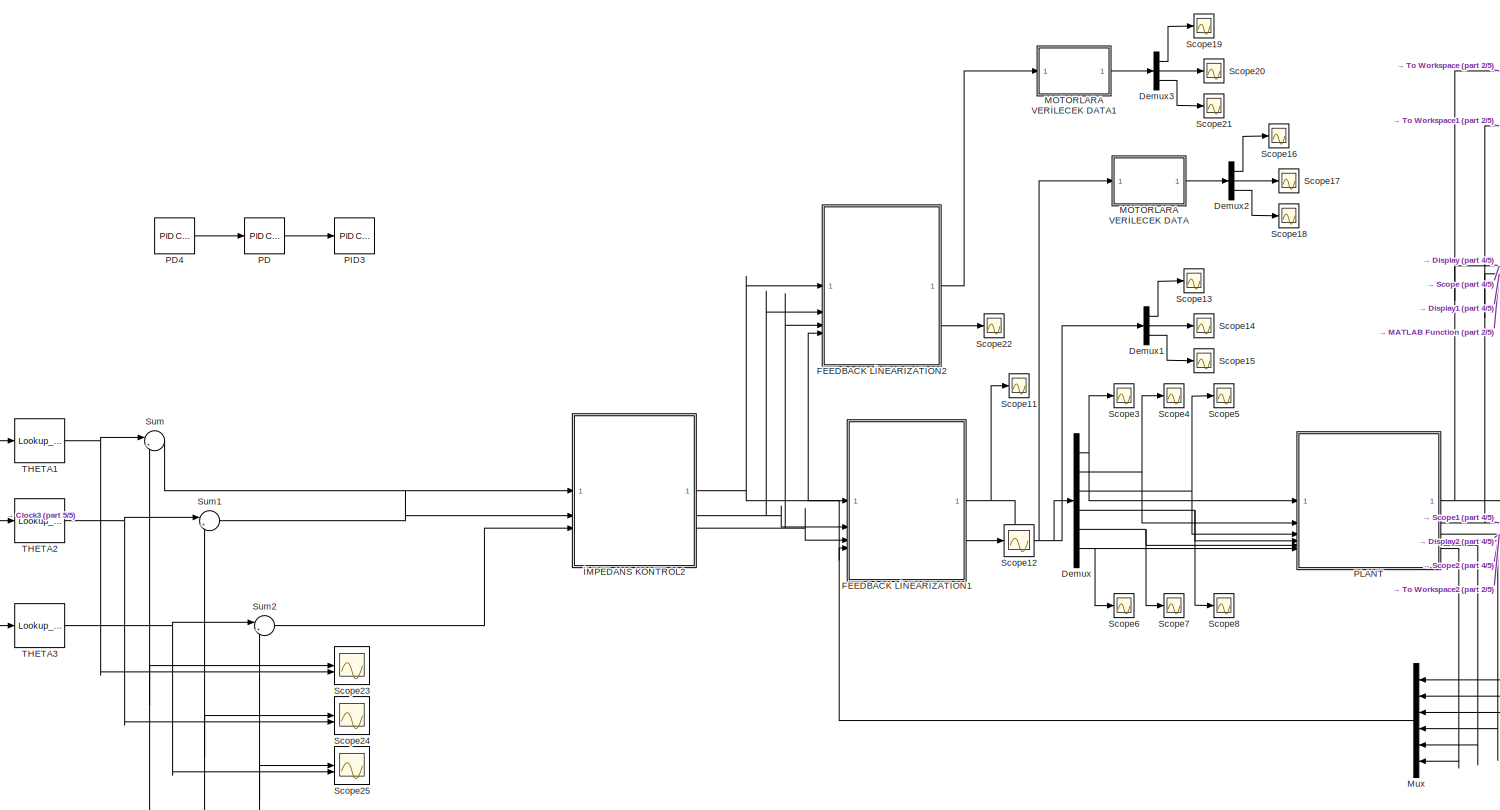
[diagram: root canvas - part 1/5, center side, full height]
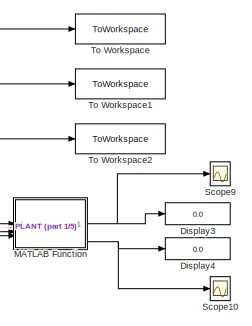
[diagram: root canvas - part 2/5, top right region]
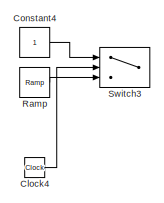
[diagram: root canvas - part 3/5, top left region]
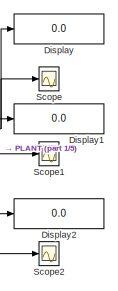
[diagram: root canvas - part 4/5, middle right region]
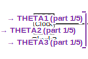
[diagram: root canvas - part 5/5, middle left region]
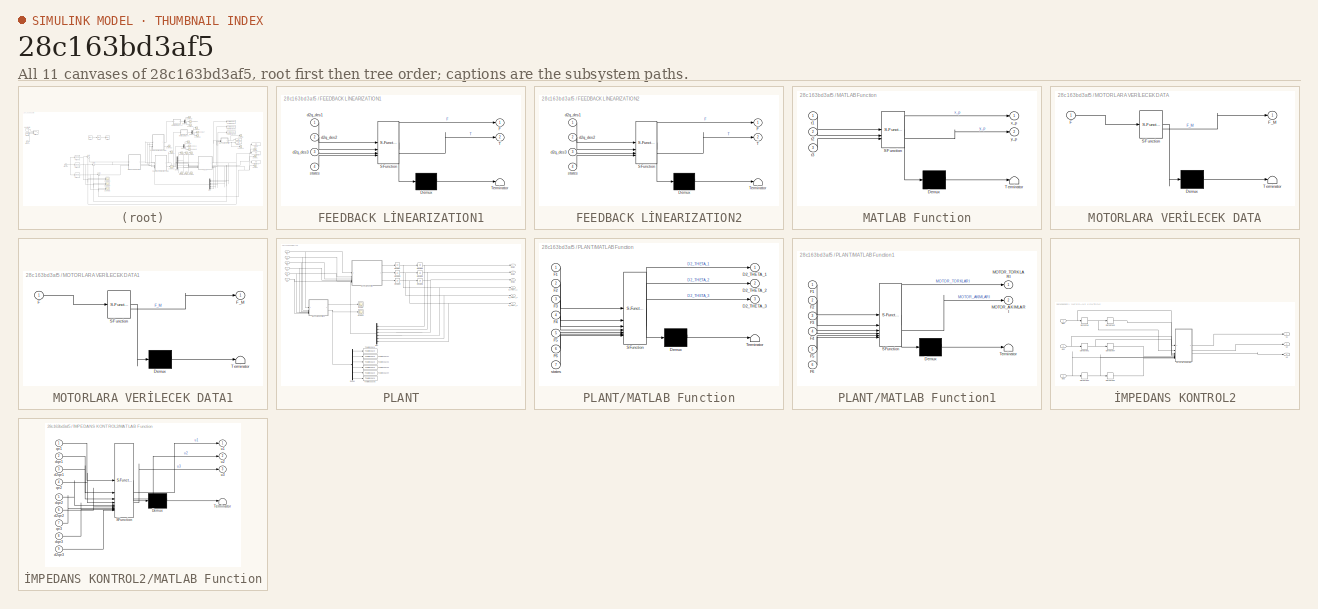
[diagram: thumbnail index - all 11 canvases of the model, root first then tree order]
MODEL slx_28c163bd3af5
KIND model
CONFIG AbsTol = auto
CONFIG EnableMultiTasking = off
CONFIG FixedStep = 0.01
CONFIG MaxStep = auto
CONFIG MinStep = auto
CONFIG RelTol = 1e-3
CONFIG SampleTimeConstraint = Unconstrained
CONFIG SolverName = FixedStepAuto
CONFIG StartTime = 0.0
CONFIG StopTime = 10
BLOCK [Clock] Clock3
BLOCK [Clock] Clock4
BLOCK [Constant] Constant4
BLOCK [Demux] Demux
  Outputs = 6
BLOCK [Demux] Demux1
  Outputs = 3
BLOCK [Demux] Demux2
  Outputs = 3
BLOCK [Demux] Demux3
  Outputs = 3
BLOCK [Display] Display
  Decimation = 1
BLOCK [Display] Display1
  Decimation = 1
BLOCK [Display] Display2
  Decimation = 1
BLOCK [Display] Display3
  Decimation = 1
BLOCK [Display] Display4
  Decimation = 1
BLOCK [SubSystem] FEEDBACK LİNEARIZATION1
  ErrorFcn = Stateflow.Translate.translate
  PermitHierarchicalResolution = ExplicitOnly
  SFBlockType = MATLAB Function
  TreatAsAtomicUnit = on
BLOCK [Demux] FEEDBACK LİNEARIZATION1/ Demux 
  Outputs = 1
BLOCK [S-Function] FEEDBACK LİNEARIZATION1/ SFunction 
  EnableBusSupport = on
  FunctionName = sf_sfun
  PortCounts = [4 3]
  SFcnIsStateOwnerBlock = off
  SFunctionDeploymentMode = off
  Tag = Stateflow S-Function 6
BLOCK [Terminator] FEEDBACK LİNEARIZATION1/ Terminator 
BLOCK [Outport] FEEDBACK LİNEARIZATION1/F
BLOCK [Outport] FEEDBACK LİNEARIZATION1/T
  Port = 2
BLOCK [Inport] FEEDBACK LİNEARIZATION1/d2q_des1
BLOCK [Inport] FEEDBACK LİNEARIZATION1/d2q_des2
  Port = 2
BLOCK [Inport] FEEDBACK LİNEARIZATION1/d2q_des3
  Port = 3
BLOCK [Inport] FEEDBACK LİNEARIZATION1/states
  Port = 4
BLOCK [SubSystem] FEEDBACK LİNEARIZATION2
  ErrorFcn = Stateflow.Translate.translate
  PermitHierarchicalResolution = ExplicitOnly
  SFBlockType = MATLAB Function
  TreatAsAtomicUnit = on
BLOCK [Demux] FEEDBACK LİNEARIZATION2/ Demux 
  Outputs = 1
BLOCK [S-Function] FEEDBACK LİNEARIZATION2/ SFunction 
  EnableBusSupport = on
  FunctionName = sf_sfun
  PortCounts = [4 3]
  SFcnIsStateOwnerBlock = off
  SFunctionDeploymentMode = off
  Tag = Stateflow S-Function 9
BLOCK [Terminator] FEEDBACK LİNEARIZATION2/ Terminator 
BLOCK [Outport] FEEDBACK LİNEARIZATION2/F
BLOCK [Outport] FEEDBACK LİNEARIZATION2/T
  Port = 2
BLOCK [Inport] FEEDBACK LİNEARIZATION2/d2q_des1
BLOCK [Inport] FEEDBACK LİNEARIZATION2/d2q_des2
  Port = 2
BLOCK [Inport] FEEDBACK LİNEARIZATION2/d2q_des3
  Port = 3
BLOCK [Inport] FEEDBACK LİNEARIZATION2/states
  Port = 4
BLOCK [SubSystem] MATLAB Function
  ErrorFcn = Stateflow.Translate.translate
  PermitHierarchicalResolution = ExplicitOnly
  SFBlockType = MATLAB Function
  TreatAsAtomicUnit = on
BLOCK [Demux] MATLAB Function/ Demux 
  Outputs = 1
BLOCK [S-Function] MATLAB Function/ SFunction 
  EnableBusSupport = on
  FunctionName = sf_sfun
  PortCounts = [3 3]
  SFcnIsStateOwnerBlock = off
  SFunctionDeploymentMode = off
  Tag = Stateflow S-Function 5
BLOCK [Terminator] MATLAB Function/ Terminator 
BLOCK [Inport] MATLAB Function/t1
BLOCK [Inport] MATLAB Function/t2
  Port = 2
BLOCK [Inport] MATLAB Function/t3
  Port = 3
BLOCK [Outport] MATLAB Function/x_p
BLOCK [Outport] MATLAB Function/y_p
  Port = 2
BLOCK [SubSystem] MOTORLARA VERİLECEK DATA
  ErrorFcn = Stateflow.Translate.translate
  PermitHierarchicalResolution = ExplicitOnly
  SFBlockType = MATLAB Function
  TreatAsAtomicUnit = on
BLOCK [Demux] MOTORLARA VERİLECEK DATA/ Demux 
  Outputs = 1
BLOCK [S-Function] MOTORLARA VERİLECEK DATA/ SFunction 
  EnableBusSupport = on
  FunctionName = sf_sfun
  PortCounts = [1 2]
  SFcnIsStateOwnerBlock = off
  SFunctionDeploymentMode = off
  Tag = Stateflow S-Function 4
BLOCK [Terminator] MOTORLARA VERİLECEK DATA/ Terminator 
BLOCK [Inport] MOTORLARA VERİLECEK DATA/F
BLOCK [Outport] MOTORLARA VERİLECEK DATA/F_M
BLOCK [SubSystem] MOTORLARA VERİLECEK DATA1
  ErrorFcn = Stateflow.Translate.translate
  PermitHierarchicalResolution = ExplicitOnly
  SFBlockType = MATLAB Function
  TreatAsAtomicUnit = on
BLOCK [Demux] MOTORLARA VERİLECEK DATA1/ Demux 
  Outputs = 1
BLOCK [S-Function] MOTORLARA VERİLECEK DATA1/ SFunction 
  EnableBusSupport = on
  FunctionName = sf_sfun
  PortCounts = [1 2]
  SFcnIsStateOwnerBlock = off
  SFunctionDeploymentMode = off
  Tag = Stateflow S-Function 3
BLOCK [Terminator] MOTORLARA VERİLECEK DATA1/ Terminator 
BLOCK [Inport] MOTORLARA VERİLECEK DATA1/F
BLOCK [Outport] MOTORLARA VERİLECEK DATA1/F_M
BLOCK [Mux] Mux
  DisplayOption = bar
  Inputs = 6
  NameLocation = top
BLOCK [Reference] PD  REF=slpidlib/PID Controller
  LibrarySourceBlock = simulink/Continuous/PID Controller
  SourceBlock = slpidlib/PID Controller
  SourceType = PID 1dof
BLOCK [Reference] PD4  REF=slpidlib/PID Controller
  LibrarySourceBlock = simulink/Continuous/PID Controller
  SourceBlock = slpidlib/PID Controller
  SourceType = PID 1dof
BLOCK [Reference] PID3  REF=slpidlib/PID Controller
  LibrarySourceBlock = simulink/Continuous/PID Controller
  SourceBlock = slpidlib/PID Controller
  SourceType = PID 1dof
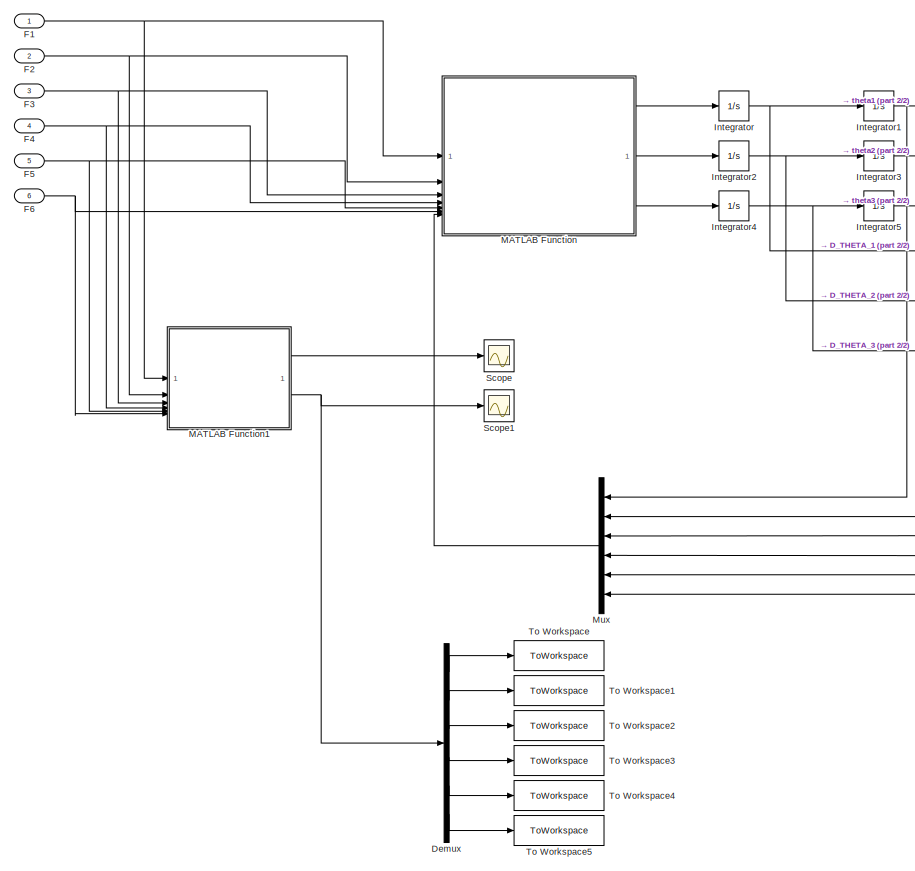
[diagram: PLANT - part 1/2, left side, full height]
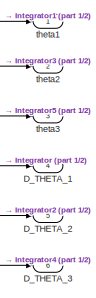
[diagram: PLANT - part 2/2, top right region]
BLOCK [SubSystem] PLANT
BLOCK [Outport] PLANT/D_THETA_1
  Port = 4
BLOCK [Outport] PLANT/D_THETA_2
  Port = 5
BLOCK [Outport] PLANT/D_THETA_3
  Port = 6
BLOCK [Demux] PLANT/Demux
  Outputs = 6
BLOCK [Inport] PLANT/F1
BLOCK [Inport] PLANT/F2
  Port = 2
BLOCK [Inport] PLANT/F3
  Port = 3
BLOCK [Inport] PLANT/F4
  Port = 4
BLOCK [Inport] PLANT/F5
  Port = 5
BLOCK [Inport] PLANT/F6
  Port = 6
BLOCK [Integrator] PLANT/Integrator
BLOCK [Integrator] PLANT/Integrator1
BLOCK [Integrator] PLANT/Integrator2
BLOCK [Integrator] PLANT/Integrator3
BLOCK [Integrator] PLANT/Integrator4
BLOCK [Integrator] PLANT/Integrator5
BLOCK [SubSystem] PLANT/MATLAB Function
  ErrorFcn = Stateflow.Translate.translate
  PermitHierarchicalResolution = ExplicitOnly
  SFBlockType = MATLAB Function
  TreatAsAtomicUnit = on
BLOCK [Demux] PLANT/MATLAB Function/ Demux 
  Outputs = 1
BLOCK [S-Function] PLANT/MATLAB Function/ SFunction 
  EnableBusSupport = on
  FunctionName = sf_sfun
  PortCounts = [7 4]
  SFcnIsStateOwnerBlock = off
  SFunctionDeploymentMode = off
  Tag = Stateflow S-Function 2
BLOCK [Terminator] PLANT/MATLAB Function/ Terminator 
BLOCK [Outport] PLANT/MATLAB Function/D2_THETA_1
BLOCK [Outport] PLANT/MATLAB Function/D2_THETA_2
  Port = 2
BLOCK [Outport] PLANT/MATLAB Function/D2_THETA_3
  Port = 3
BLOCK [Inport] PLANT/MATLAB Function/F1
BLOCK [Inport] PLANT/MATLAB Function/F2
  Port = 2
BLOCK [Inport] PLANT/MATLAB Function/F3
  Port = 3
BLOCK [Inport] PLANT/MATLAB Function/F4
  Port = 4
BLOCK [Inport] PLANT/MATLAB Function/F5
  Port = 5
BLOCK [Inport] PLANT/MATLAB Function/F6
  Port = 6
BLOCK [Inport] PLANT/MATLAB Function/states
  Port = 7
BLOCK [SubSystem] PLANT/MATLAB Function1
  ErrorFcn = Stateflow.Translate.translate
  PermitHierarchicalResolution = ExplicitOnly
  SFBlockType = MATLAB Function
  TreatAsAtomicUnit = on
BLOCK [Demux] PLANT/MATLAB Function1/ Demux 
  Outputs = 1
BLOCK [S-Function] PLANT/MATLAB Function1/ SFunction 
  EnableBusSupport = on
  FunctionName = sf_sfun
  PortCounts = [6 3]
  SFcnIsStateOwnerBlock = off
  SFunctionDeploymentMode = off
  Tag = Stateflow S-Function 1
BLOCK [Terminator] PLANT/MATLAB Function1/ Terminator 
BLOCK [Inport] PLANT/MATLAB Function1/F1
BLOCK [Inport] PLANT/MATLAB Function1/F2
  Port = 2
BLOCK [Inport] PLANT/MATLAB Function1/F3
  Port = 3
BLOCK [Inport] PLANT/MATLAB Function1/F4
  Port = 4
BLOCK [Inport] PLANT/MATLAB Function1/F5
  Port = 5
BLOCK [Inport] PLANT/MATLAB Function1/F6
  Port = 6
BLOCK [Outport] PLANT/MATLAB Function1/MOTOR_AKIMLARI
  Port = 2
BLOCK [Outport] PLANT/MATLAB Function1/MOTOR_TORKLARI
BLOCK [Mux] PLANT/Mux
  DisplayOption = bar
  Inputs = 6
  NameLocation = top
BLOCK [Scope] PLANT/Scope
  Floating = off
  NumInputPorts = 1
  ScopeSpecificationString = Simulink.scopes.TimeScopeBlockCfg('CurrentConfiguration', extmgr.ConfigurationSet(extmgr.Configuration('Core','General UI',true),extmgr.Configuration('Core','Source UI',true),extmgr.Configuration('Sources','WiredSimulink',true,'DataLoggingVariableName','ScopeData1'),extmgr.Configuration('Visuals','Time Domain',true,'SerializedDisplays',{struct('MinYLimReal','-0.0105','MaxYLimReal','0.09573','YLabe...<+1686ch>
BLOCK [Scope] PLANT/Scope1
  Floating = off
  NumInputPorts = 1
  ScopeSpecificationString = Simulink.scopes.TimeScopeBlockCfg('CurrentConfiguration', extmgr.ConfigurationSet(extmgr.Configuration('Core','General UI',true),extmgr.Configuration('Core','Source UI',true),extmgr.Configuration('Sources','WiredSimulink',true,'DataLoggingVariableName','ScopeData2'),extmgr.Configuration('Visuals','Time Domain',true,'SerializedDisplays',{struct('MinYLimReal','-0.01207','MaxYLimReal','0.11003','YLab...<+1732ch>
BLOCK [ToWorkspace] PLANT/To Workspace
  FixptAsFi = on
  MaxDataPoints = inf
  SampleTime = -1
  SaveFormat = Timeseries
  VariableName = m1
BLOCK [ToWorkspace] PLANT/To Workspace1
  FixptAsFi = on
  MaxDataPoints = inf
  SampleTime = -1
  SaveFormat = Timeseries
  VariableName = m2
BLOCK [ToWorkspace] PLANT/To Workspace2
  FixptAsFi = on
  MaxDataPoints = inf
  SampleTime = -1
  SaveFormat = Timeseries
  VariableName = m3
BLOCK [ToWorkspace] PLANT/To Workspace3
  FixptAsFi = on
  MaxDataPoints = inf
  SampleTime = -1
  SaveFormat = Timeseries
  VariableName = m4
BLOCK [ToWorkspace] PLANT/To Workspace4
  FixptAsFi = on
  MaxDataPoints = inf
  SampleTime = -1
  SaveFormat = Timeseries
  VariableName = m5
BLOCK [ToWorkspace] PLANT/To Workspace5
  FixptAsFi = on
  MaxDataPoints = inf
  SampleTime = -1
  SaveFormat = Timeseries
  VariableName = m6
BLOCK [Outport] PLANT/theta1
BLOCK [Outport] PLANT/theta2
  Port = 2
BLOCK [Outport] PLANT/theta3
  Port = 3
BLOCK [Reference] Ramp  REF=simulink/Sources/Ramp
  SourceBlock = simulink/Sources/Ramp
  SourceType = Ramp
BLOCK [Scope] Scope
  Floating = off
  NumInputPorts = 1
  ScopeSpecificationString = Simulink.scopes.TimeScopeBlockCfg('CurrentConfiguration', extmgr.ConfigurationSet(extmgr.Configuration('Core','General UI',true),extmgr.Configuration('Core','Source UI',true),extmgr.Configuration('Sources','WiredSimulink',true,'DataLoggingVariableName','ScopeData1'),extmgr.Configuration('Visuals','Time Domain',true,'SerializedDisplays',{struct('MinYLimReal','-0.18281','MaxYLimReal','1.64529','YLab...<+1507ch>
BLOCK [Scope] Scope1
  Floating = off
  NumInputPorts = 1
  ScopeSpecificationString = Simulink.scopes.TimeScopeBlockCfg('CurrentConfiguration', extmgr.ConfigurationSet(extmgr.Configuration('Core','General UI',true),extmgr.Configuration('Core','Source UI',true),extmgr.Configuration('Sources','WiredSimulink',true,'DataLoggingVariableName','ScopeData2'),extmgr.Configuration('Visuals','Time Domain',true,'SerializedDisplays',{struct('MinYLimReal','-0.41772','MaxYLimReal','0.37044','YLab...<+1482ch>
BLOCK [Scope] Scope10
  Floating = off
  NumInputPorts = 1
  ScopeSpecificationString = Simulink.scopes.TimeScopeBlockCfg('CurrentConfiguration', extmgr.ConfigurationSet(extmgr.Configuration('Core','General UI',true),extmgr.Configuration('Core','Source UI',true),extmgr.Configuration('Sources','WiredSimulink',true,'DataLoggingVariableName','ScopeData1'),extmgr.Configuration('Visuals','Time Domain',true,'SerializedDisplays',{struct('MinYLimReal','-1.92457','MaxYLimReal','17.32114','YLa...<+1523ch>
BLOCK [Scope] Scope11
  Floating = off
  NumInputPorts = 1
  ScopeSpecificationString = Simulink.scopes.TimeScopeBlockCfg('CurrentConfiguration', extmgr.ConfigurationSet(extmgr.Configuration('Core','General UI',true),extmgr.Configuration('Core','Source UI',true),extmgr.Configuration('Sources','WiredSimulink',true,'DataLoggingVariableName','ScopeData1'),extmgr.Configuration('Visuals','Time Domain',true,'SerializedDisplays',{struct('MinYLimReal','-1.33044','MaxYLimReal','11.97396','YLa...<+1681ch>
BLOCK [Scope] Scope12
  Floating = off
  NumInputPorts = 1
  ScopeSpecificationString = Simulink.scopes.TimeScopeBlockCfg('CurrentConfiguration', extmgr.ConfigurationSet(extmgr.Configuration('Core','General UI',true),extmgr.Configuration('Core','Source UI',true),extmgr.Configuration('Sources','WiredSimulink',true,'DataLoggingVariableName','ScopeData1'),extmgr.Configuration('Visuals','Time Domain',true,'SerializedDisplays',{struct('MinYLimReal','-0.00251','MaxYLimReal','0.03432','YLab...<+1638ch>
BLOCK [Scope] Scope13
  Floating = off
  NumInputPorts = 1
  ScopeSpecificationString = Simulink.scopes.TimeScopeBlockCfg('CurrentConfiguration', extmgr.ConfigurationSet(extmgr.Configuration('Core','General UI',true),extmgr.Configuration('Core','Source UI',true),extmgr.Configuration('Sources','WiredSimulink',true,'DataLoggingVariableName','ScopeData1'),extmgr.Configuration('Visuals','Time Domain',true,'SerializedDisplays',{struct('MinYLimReal','-0.92318','MaxYLimReal','8.30863','YLab...<+1542ch>
BLOCK [Scope] Scope14
  Floating = off
  NumInputPorts = 1
  ScopeSpecificationString = Simulink.scopes.TimeScopeBlockCfg('CurrentConfiguration', extmgr.ConfigurationSet(extmgr.Configuration('Core','General UI',true),extmgr.Configuration('Core','Source UI',true),extmgr.Configuration('Sources','WiredSimulink',true,'DataLoggingVariableName','ScopeData2'),extmgr.Configuration('Visuals','Time Domain',true,'SerializedDisplays',{struct('MinYLimReal','-0.35431','MaxYLimReal','3.18882','YLab...<+1498ch>
BLOCK [Scope] Scope15
  Floating = off
  NumInputPorts = 1
  ScopeSpecificationString = Simulink.scopes.TimeScopeBlockCfg('CurrentConfiguration', extmgr.ConfigurationSet(extmgr.Configuration('Core','General UI',true),extmgr.Configuration('Core','Source UI',true),extmgr.Configuration('Sources','WiredSimulink',true,'DataLoggingVariableName','ScopeData3'),extmgr.Configuration('Visuals','Time Domain',true,'SerializedDisplays',{struct('MinYLimReal','-0.06054','MaxYLimReal','0.5449','YLabe...<+1494ch>
BLOCK [Scope] Scope16
  Floating = off
  NumInputPorts = 1
  ScopeSpecificationString = Simulink.scopes.TimeScopeBlockCfg('CurrentConfiguration', extmgr.ConfigurationSet(extmgr.Configuration('Core','General UI',true),extmgr.Configuration('Core','Source UI',true),extmgr.Configuration('Sources','WiredSimulink',true,'DataLoggingVariableName','ScopeData4'),extmgr.Configuration('Visuals','Time Domain',true,'SerializedDisplays',{struct('MinYLimReal','-8.498','MaxYLimReal','8.498','YLabelRe...<+1531ch>
BLOCK [Scope] Scope17
  Floating = off
  NumInputPorts = 1
  ScopeSpecificationString = Simulink.scopes.TimeScopeBlockCfg('CurrentConfiguration', extmgr.ConfigurationSet(extmgr.Configuration('Core','General UI',true),extmgr.Configuration('Core','Source UI',true),extmgr.Configuration('Sources','WiredSimulink',true,'DataLoggingVariableName','ScopeData5'),extmgr.Configuration('Visuals','Time Domain',true,'SerializedDisplays',{struct('MinYLimReal','-0.31485','MaxYLimReal','2.83361','YLab...<+1498ch>
BLOCK [Scope] Scope18
  Floating = off
  NumInputPorts = 1
  ScopeSpecificationString = Simulink.scopes.TimeScopeBlockCfg('CurrentConfiguration', extmgr.ConfigurationSet(extmgr.Configuration('Core','General UI',true),extmgr.Configuration('Core','Source UI',true),extmgr.Configuration('Sources','WiredSimulink',true,'DataLoggingVariableName','ScopeData6'),extmgr.Configuration('Visuals','Time Domain',true,'SerializedDisplays',{struct('MinYLimReal','-0.05099','MaxYLimReal','0.45891','YLab...<+1498ch>
BLOCK [Scope] Scope19
  Floating = off
  NumInputPorts = 1
  ScopeSpecificationString = Simulink.scopes.TimeScopeBlockCfg('CurrentConfiguration', extmgr.ConfigurationSet(extmgr.Configuration('Core','General UI',true),extmgr.Configuration('Core','Source UI',true),extmgr.Configuration('Sources','WiredSimulink',true,'DataLoggingVariableName','ScopeData7'),extmgr.Configuration('Visuals','Time Domain',true,'SerializedDisplays',{struct('MinYLimReal','-8.498','MaxYLimReal','8.498','YLabelRe...<+1529ch>
BLOCK [Scope] Scope2
  Floating = off
  NumInputPorts = 1
  ScopeSpecificationString = Simulink.scopes.TimeScopeBlockCfg('CurrentConfiguration', extmgr.ConfigurationSet(extmgr.Configuration('Core','General UI',true),extmgr.Configuration('Core','Source UI',true),extmgr.Configuration('Sources','WiredSimulink',true,'DataLoggingVariableName','ScopeData3'),extmgr.Configuration('Visuals','Time Domain',true,'SerializedDisplays',{struct('MinYLimReal','-3.27561','MaxYLimReal','0.36396','YLab...<+1455ch>
BLOCK [Scope] Scope20
  Floating = off
  NumInputPorts = 1
  ScopeSpecificationString = Simulink.scopes.TimeScopeBlockCfg('CurrentConfiguration', extmgr.ConfigurationSet(extmgr.Configuration('Core','General UI',true),extmgr.Configuration('Core','Source UI',true),extmgr.Configuration('Sources','WiredSimulink',true,'DataLoggingVariableName','ScopeData8'),extmgr.Configuration('Visuals','Time Domain',true,'SerializedDisplays',{struct('MinYLimReal','-0.31485','MaxYLimReal','2.83361','YLab...<+1498ch>
BLOCK [Scope] Scope21
  Floating = off
  NumInputPorts = 1
  ScopeSpecificationString = Simulink.scopes.TimeScopeBlockCfg('CurrentConfiguration', extmgr.ConfigurationSet(extmgr.Configuration('Core','General UI',true),extmgr.Configuration('Core','Source UI',true),extmgr.Configuration('Sources','WiredSimulink',true,'DataLoggingVariableName','ScopeData9'),extmgr.Configuration('Visuals','Time Domain',true,'SerializedDisplays',{struct('MinYLimReal','-0.05099','MaxYLimReal','0.45891','YLab...<+1498ch>
BLOCK [Scope] Scope22
  Floating = off
  NumInputPorts = 1
  ScopeSpecificationString = Simulink.scopes.TimeScopeBlockCfg('CurrentConfiguration', extmgr.ConfigurationSet(extmgr.Configuration('Core','General UI',true),extmgr.Configuration('Core','Source UI',true),extmgr.Configuration('Sources','WiredSimulink',true,'DataLoggingVariableName','ScopeData10'),extmgr.Configuration('Visuals','Time Domain',true,'SerializedDisplays',{struct('MinYLimReal','-0.8498','MaxYLimReal','7.6482','YLabe...<+1537ch>
BLOCK [Scope] Scope23
  Floating = off
  NumInputPorts = 2
  ScopeSpecificationString = Simulink.scopes.TimeScopeBlockCfg('CurrentConfiguration', extmgr.ConfigurationSet(extmgr.Configuration('Core','General UI',true,'FigureColor',[0.831372549019608 0.815686274509804 0.784313725490196]),extmgr.Configuration('Core','Source UI',true),extmgr.Configuration('Sources','WiredSimulink',true,'DataLoggingVariableName','ScopeData1'),extmgr.Configuration('Visuals','Time Domain',true,'SerializedDi...<+1840ch>
BLOCK [Scope] Scope24
  Floating = off
  NumInputPorts = 2
  ScopeSpecificationString = Simulink.scopes.TimeScopeBlockCfg('CurrentConfiguration', extmgr.ConfigurationSet(extmgr.Configuration('Core','General UI',true,'FigureColor',[0.831372549019608 0.815686274509804 0.784313725490196]),extmgr.Configuration('Core','Source UI',true),extmgr.Configuration('Sources','WiredSimulink',true,'DataLoggingVariableName','ScopeData2'),extmgr.Configuration('Visuals','Time Domain',true,'SerializedDi...<+1840ch>
BLOCK [Scope] Scope25
  Floating = off
  NumInputPorts = 2
  ScopeSpecificationString = Simulink.scopes.TimeScopeBlockCfg('CurrentConfiguration', extmgr.ConfigurationSet(extmgr.Configuration('Core','General UI',true,'FigureColor',[0.831372549019608 0.815686274509804 0.784313725490196]),extmgr.Configuration('Core','Source UI',true),extmgr.Configuration('Sources','WiredSimulink',true,'DataLoggingVariableName','ScopeData3'),extmgr.Configuration('Visuals','Time Domain',true,'SerializedDi...<+1842ch>
BLOCK [Scope] Scope3
  Floating = off
  NumInputPorts = 1
  ScopeSpecificationString = Simulink.scopes.TimeScopeBlockCfg('CurrentConfiguration', extmgr.ConfigurationSet(extmgr.Configuration('Core','General UI',true),extmgr.Configuration('Core','Source UI',true),extmgr.Configuration('Sources','WiredSimulink',true,'DataLoggingVariableName','ScopeData4'),extmgr.Configuration('Visuals','Time Domain',true,'SerializedDisplays',{struct('MinYLimReal','-0.13229','MaxYLimReal','1.29065','YLab...<+1525ch>
BLOCK [Scope] Scope4
  Floating = off
  NumInputPorts = 1
  ScopeSpecificationString = Simulink.scopes.TimeScopeBlockCfg('CurrentConfiguration', extmgr.ConfigurationSet(extmgr.Configuration('Core','General UI',true),extmgr.Configuration('Core','Source UI',true),extmgr.Configuration('Sources','WiredSimulink',true,'DataLoggingVariableName','ScopeData5'),extmgr.Configuration('Visuals','Time Domain',true,'SerializedDisplays',{struct('MinYLimReal','-0.8498','MaxYLimReal','7.6482','YLabel...<+1477ch>
BLOCK [Scope] Scope5
  Floating = off
  NumInputPorts = 1
  ScopeSpecificationString = Simulink.scopes.TimeScopeBlockCfg('CurrentConfiguration', extmgr.ConfigurationSet(extmgr.Configuration('Core','General UI',true),extmgr.Configuration('Core','Source UI',true),extmgr.Configuration('Sources','WiredSimulink',true,'DataLoggingVariableName','ScopeData6'),extmgr.Configuration('Visuals','Time Domain',true,'SerializedDisplays',{struct('MinYLimReal','-0.02709','MaxYLimReal','0.34377','YLab...<+1482ch>
BLOCK [Scope] Scope6
  Floating = off
  NumInputPorts = 1
  ScopeSpecificationString = Simulink.scopes.TimeScopeBlockCfg('CurrentConfiguration', extmgr.ConfigurationSet(extmgr.Configuration('Core','General UI',true),extmgr.Configuration('Core','Source UI',true),extmgr.Configuration('Sources','WiredSimulink',true,'DataLoggingVariableName','ScopeData7'),extmgr.Configuration('Visuals','Time Domain',true,'SerializedDisplays',{struct('MinYLimReal','-0.04099','MaxYLimReal','0.46891','YLab...<+1482ch>
BLOCK [Scope] Scope7
  Floating = off
  NumInputPorts = 1
  ScopeSpecificationString = Simulink.scopes.TimeScopeBlockCfg('CurrentConfiguration', extmgr.ConfigurationSet(extmgr.Configuration('Core','General UI',true),extmgr.Configuration('Core','Source UI',true),extmgr.Configuration('Sources','WiredSimulink',true,'DataLoggingVariableName','ScopeData8'),extmgr.Configuration('Visuals','Time Domain',true,'SerializedDisplays',{struct('MinYLimReal','-0.01772','MaxYLimReal','0.25952','YLab...<+1482ch>
BLOCK [Scope] Scope8
  Floating = off
  NumInputPorts = 1
  ScopeSpecificationString = Simulink.scopes.TimeScopeBlockCfg('CurrentConfiguration', extmgr.ConfigurationSet(extmgr.Configuration('Core','General UI',true),extmgr.Configuration('Core','Source UI',true),extmgr.Configuration('Sources','WiredSimulink',true,'DataLoggingVariableName','ScopeData9'),extmgr.Configuration('Visuals','Time Domain',true,'SerializedDisplays',{struct('MinYLimReal','-0.30485','MaxYLimReal','2.84361','YLab...<+1482ch>
BLOCK [Scope] Scope9
  Floating = off
  NumInputPorts = 1
  ScopeSpecificationString = Simulink.scopes.TimeScopeBlockCfg('CurrentConfiguration', extmgr.ConfigurationSet(extmgr.Configuration('Core','General UI',true),extmgr.Configuration('Core','Source UI',true),extmgr.Configuration('Sources','WiredSimulink',true,'DataLoggingVariableName','ScopeData2'),extmgr.Configuration('Visuals','Time Domain',true,'SerializedDisplays',{struct('MinYLimReal','8.01617','MaxYLimReal','26.55376','YLab...<+1521ch>
BLOCK [Sum] Sum
  Inputs = |+-
BLOCK [Sum] Sum1
  Inputs = |+-
BLOCK [Sum] Sum2
  Inputs = |+-
BLOCK [Switch] Switch3
  Criteria = u2 > Threshold
  InputSameDT = off
  SaturateOnIntegerOverflow = off
  Threshold = 2
BLOCK [Lookup_n-D] THETA1
  BreakpointsForDimension1 = [0:0.01209:10]
  InputPortMap = u0
  InternalRulePriority = Speed
  NumberOfTableDimensions = 1
  RndMeth = Simplest
  Table = [3.6739403974420595e-17  0.0018373747386941153  0.031104117726482236  0.018742775985835458  0.03582520263747096  0.04592374641467687  0.052359865334245005  0.024058789434421298  0.0371846744639253  0.03766299609142134  0.04053395039223553  0.05419725229851646  0.03858245137367349  0.06940555854089034  0.07349874804657569  0.06036247150750728  0.05603574389361684  0.060203800337469145  0.0574270776...<+16163ch>
BLOCK [Lookup_n-D] THETA2
  BreakpointsForDimension1 = [0:0.01209:10]
  InputPortMap = u0
  InternalRulePriority = Speed
  NumberOfTableDimensions = 1
  RndMeth = Simplest
  Table = [0.0  0.03490658503988885  -0.033284041948025575  0.024108973093034097  0.017453292519947913  0.010897133595376871  2.580956827951785e-08  0.05801510497744568  0.04868897935829344  0.05235987755982642  0.060690073963622776  0.03490658503990476  0.06981317007977231  0.024238413989330437  0.014730566219418576  0.05579073535311509  0.06981317007977231  0.06823361310456687  0.08130478950558964  0.0281...<+17431ch>
BLOCK [Lookup_n-D] THETA3
  BreakpointsForDimension1 = [0:0.01209:10]
  InputPortMap = u0
  InternalRulePriority = Speed
  NumberOfTableDimensions = 1
  RndMeth = Simplest
  Table = [1.4901161157108252e-08  -0.08910383733841787  -0.0327266608183487  -0.12139156541861737  -0.17545154279702416  -0.19644722016959976  -0.19198623130335932  -0.21297358831144533  -0.2429532865017081  -0.2471025063307386  -0.27575694955529145  -0.2636367625378544  -0.282928546652879  -0.29435683650957045  -0.2802155319853704  -0.32559271709994325  -0.3352884242127084  -0.34660356994132824  -0.365624...<+16824ch>
BLOCK [ToWorkspace] To Workspace
  FixptAsFi = on
  MaxDataPoints = inf
  SampleTime = -1
  SaveFormat = Timeseries
  VariableName = theta1
BLOCK [ToWorkspace] To Workspace1
  FixptAsFi = on
  MaxDataPoints = inf
  SampleTime = -1
  SaveFormat = Timeseries
  VariableName = theta2
BLOCK [ToWorkspace] To Workspace2
  FixptAsFi = on
  MaxDataPoints = inf
  SampleTime = -1
  SaveFormat = Timeseries
  VariableName = theta3
BLOCK [SubSystem] İMPEDANS KONTROL2
BLOCK [Derivative] İMPEDANS KONTROL2/Derivative
BLOCK [Derivative] İMPEDANS KONTROL2/Derivative1
BLOCK [Derivative] İMPEDANS KONTROL2/Derivative2
BLOCK [Derivative] İMPEDANS KONTROL2/Derivative3
BLOCK [Derivative] İMPEDANS KONTROL2/Derivative4
BLOCK [Derivative] İMPEDANS KONTROL2/Derivative5
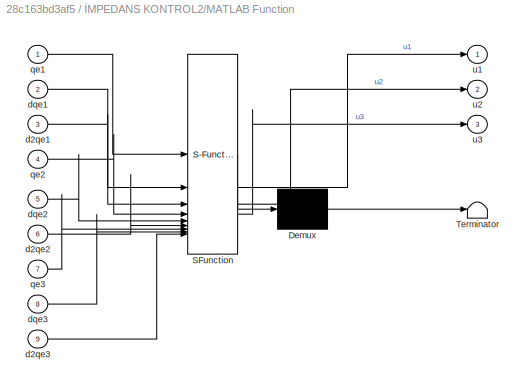
BLOCK [SubSystem] İMPEDANS KONTROL2/MATLAB Function
  ErrorFcn = Stateflow.Translate.translate
  PermitHierarchicalResolution = ExplicitOnly
  SFBlockType = MATLAB Function
  TreatAsAtomicUnit = on
BLOCK [Demux] İMPEDANS KONTROL2/MATLAB Function/ Demux 
  Outputs = 1
BLOCK [S-Function] İMPEDANS KONTROL2/MATLAB Function/ SFunction 
  EnableBusSupport = on
  FunctionName = sf_sfun
  PortCounts = [9 4]
  SFcnIsStateOwnerBlock = off
  SFunctionDeploymentMode = off
  Tag = Stateflow S-Function 10
BLOCK [Terminator] İMPEDANS KONTROL2/MATLAB Function/ Terminator 
BLOCK [Inport] İMPEDANS KONTROL2/MATLAB Function/d2qe1
  Port = 3
BLOCK [Inport] İMPEDANS KONTROL2/MATLAB Function/d2qe2
  Port = 6
BLOCK [Inport] İMPEDANS KONTROL2/MATLAB Function/d2qe3
  Port = 9
BLOCK [Inport] İMPEDANS KONTROL2/MATLAB Function/dqe1
  Port = 2
BLOCK [Inport] İMPEDANS KONTROL2/MATLAB Function/dqe2
  Port = 5
BLOCK [Inport] İMPEDANS KONTROL2/MATLAB Function/dqe3
  Port = 8
BLOCK [Inport] İMPEDANS KONTROL2/MATLAB Function/qe1
BLOCK [Inport] İMPEDANS KONTROL2/MATLAB Function/qe2
  Port = 4
BLOCK [Inport] İMPEDANS KONTROL2/MATLAB Function/qe3
  Port = 7
BLOCK [Outport] İMPEDANS KONTROL2/MATLAB Function/u1
BLOCK [Outport] İMPEDANS KONTROL2/MATLAB Function/u2
  Port = 2
BLOCK [Outport] İMPEDANS KONTROL2/MATLAB Function/u3
  Port = 3
BLOCK [Inport] İMPEDANS KONTROL2/qe1
BLOCK [Inport] İMPEDANS KONTROL2/qe2
  Port = 2
BLOCK [Inport] İMPEDANS KONTROL2/qe3
  Port = 3
BLOCK [Outport] İMPEDANS KONTROL2/u1
BLOCK [Outport] İMPEDANS KONTROL2/u2
  Port = 2
BLOCK [Outport] İMPEDANS KONTROL2/u3
  Port = 3
NET Clock3:1 -> THETA1:1, THETA2:1, THETA3:1
LINE Clock4:1 -> Switch3:2
LINE Constant4:1 -> Switch3:1
LINE Demux1:1 -> Scope13:1
LINE Demux1:2 -> Scope14:1
LINE Demux1:3 -> Scope15:1
LINE Demux2:1 -> Scope16:1
LINE Demux2:2 -> Scope17:1
LINE Demux2:3 -> Scope18:1
LINE Demux3:1 -> Scope19:1
LINE Demux3:2 -> Scope20:1
LINE Demux3:3 -> Scope21:1
NET Demux:1 -> PLANT:1, Scope3:1
NET Demux:2 -> PLANT:2, Scope4:1
NET Demux:3 -> PLANT:3, Scope5:1
NET Demux:4 -> PLANT:4, Scope8:1
NET Demux:5 -> PLANT:5, Scope7:1
NET Demux:6 -> PLANT:6, Scope6:1
NET FEEDBACK LİNEARIZATION1:1 -> Demux1:1, Demux:1, MOTORLARA VERİLECEK DATA:1, Scope11:1
LINE FEEDBACK LİNEARIZATION1:2 -> Scope12:1
LINE FEEDBACK LİNEARIZATION2:1 -> MOTORLARA VERİLECEK DATA1:1
LINE FEEDBACK LİNEARIZATION2:2 -> Scope22:1
NET MATLAB Function:1 -> Display3:1, Scope9:1
NET MATLAB Function:2 -> Display4:1, Scope10:1
LINE MOTORLARA VERİLECEK DATA1:1 -> Demux3:1
LINE MOTORLARA VERİLECEK DATA:1 -> Demux2:1
NET Mux:1 -> FEEDBACK LİNEARIZATION1:4, FEEDBACK LİNEARIZATION2:4
LINE PD4:1 -> PD:1
LINE PD:1 -> PID3:1
LINE PLANT/Demux:1 -> PLANT/To Workspace:1
LINE PLANT/Demux:2 -> PLANT/To Workspace1:1
LINE PLANT/Demux:3 -> PLANT/To Workspace2:1
LINE PLANT/Demux:4 -> PLANT/To Workspace3:1
LINE PLANT/Demux:5 -> PLANT/To Workspace4:1
LINE PLANT/Demux:6 -> PLANT/To Workspace5:1
NET PLANT/F1:1 -> PLANT/MATLAB Function1:1, PLANT/MATLAB Function:1
NET PLANT/F2:1 -> PLANT/MATLAB Function1:2, PLANT/MATLAB Function:2
NET PLANT/F3:1 -> PLANT/MATLAB Function1:3, PLANT/MATLAB Function:3
NET PLANT/F4:1 -> PLANT/MATLAB Function1:4, PLANT/MATLAB Function:4
NET PLANT/F5:1 -> PLANT/MATLAB Function1:5, PLANT/MATLAB Function:5
NET PLANT/F6:1 -> PLANT/MATLAB Function1:6, PLANT/MATLAB Function:6
NET PLANT/Integrator1:1 -> PLANT/Mux:1, PLANT/theta1:1
NET PLANT/Integrator2:1 -> PLANT/D_THETA_2:1, PLANT/Integrator3:1, PLANT/Mux:5
NET PLANT/Integrator3:1 -> PLANT/Mux:2, PLANT/theta2:1
NET PLANT/Integrator4:1 -> PLANT/D_THETA_3:1, PLANT/Integrator5:1, PLANT/Mux:6
NET PLANT/Integrator5:1 -> PLANT/Mux:3, PLANT/theta3:1
NET PLANT/Integrator:1 -> PLANT/D_THETA_1:1, PLANT/Integrator1:1, PLANT/Mux:4
LINE PLANT/MATLAB Function1:1 -> PLANT/Scope:1
NET PLANT/MATLAB Function1:2 -> PLANT/Demux:1, PLANT/Scope1:1
LINE PLANT/MATLAB Function:1 -> PLANT/Integrator:1
LINE PLANT/MATLAB Function:2 -> PLANT/Integrator2:1
LINE PLANT/MATLAB Function:3 -> PLANT/Integrator4:1
LINE PLANT/Mux:1 -> PLANT/MATLAB Function:7
NET PLANT:1 -> Display:1, MATLAB Function:1, Mux:1, Scope23:1, Scope:1, Sum:2, To Workspace:1
NET PLANT:2 -> Display1:1, MATLAB Function:2, Mux:2, Scope1:1, Scope24:1, Sum1:2, To Workspace1:1
NET PLANT:3 -> Display2:1, MATLAB Function:3, Mux:3, Scope25:1, Scope2:1, Sum2:2, To Workspace2:1
LINE PLANT:4 -> Mux:4
LINE PLANT:5 -> Mux:5
LINE PLANT:6 -> Mux:6
LINE Ramp:1 -> Switch3:3
LINE Sum1:1 -> İMPEDANS KONTROL2:2
LINE Sum2:1 -> İMPEDANS KONTROL2:3
LINE Sum:1 -> İMPEDANS KONTROL2:1
NET THETA1:1 -> Scope23:2, Sum:1
NET THETA2:1 -> Scope24:2, Sum1:1
NET THETA3:1 -> Scope25:2, Sum2:1
NET İMPEDANS KONTROL2/Derivative1:1 -> İMPEDANS KONTROL2/Derivative4:1, İMPEDANS KONTROL2/MATLAB Function:5
NET İMPEDANS KONTROL2/Derivative2:1 -> İMPEDANS KONTROL2/Derivative5:1, İMPEDANS KONTROL2/MATLAB Function:8
LINE İMPEDANS KONTROL2/Derivative3:1 -> İMPEDANS KONTROL2/MATLAB Function:3
LINE İMPEDANS KONTROL2/Derivative4:1 -> İMPEDANS KONTROL2/MATLAB Function:6
LINE İMPEDANS KONTROL2/Derivative5:1 -> İMPEDANS KONTROL2/MATLAB Function:9
NET İMPEDANS KONTROL2/Derivative:1 -> İMPEDANS KONTROL2/Derivative3:1, İMPEDANS KONTROL2/MATLAB Function:2
LINE İMPEDANS KONTROL2/MATLAB Function:1 -> İMPEDANS KONTROL2/u1:1
LINE İMPEDANS KONTROL2/MATLAB Function:2 -> İMPEDANS KONTROL2/u2:1
LINE İMPEDANS KONTROL2/MATLAB Function:3 -> İMPEDANS KONTROL2/u3:1
NET İMPEDANS KONTROL2/qe1:1 -> İMPEDANS KONTROL2/Derivative:1, İMPEDANS KONTROL2/MATLAB Function:1
NET İMPEDANS KONTROL2/qe2:1 -> İMPEDANS KONTROL2/Derivative1:1, İMPEDANS KONTROL2/MATLAB Function:4
NET İMPEDANS KONTROL2/qe3:1 -> İMPEDANS KONTROL2/Derivative2:1, İMPEDANS KONTROL2/MATLAB Function:7
NET İMPEDANS KONTROL2:1 -> FEEDBACK LİNEARIZATION1:1, FEEDBACK LİNEARIZATION2:1
NET İMPEDANS KONTROL2:2 -> FEEDBACK LİNEARIZATION1:2, FEEDBACK LİNEARIZATION2:2
NET İMPEDANS KONTROL2:3 -> FEEDBACK LİNEARIZATION1:3, FEEDBACK LİNEARIZATION2:3
note: NET lines group one-source signal fan-out (src -> all destinations, sorted); 1:1 wires keep LINE
CHART PLANT/MATLAB Function1 states=1 transitions=1
  STATE_LABEL 'eML_blk_kernel()'
  STATE_LABEL 'SCRIPT:\nfunction [MOTOR_TORKLARI, MOTOR_AKIMLARI] = fcn(F1, F2, F3, F4, F5, F6)\n\nm1t = F1*0.0125;\nm2t = F2*0.0125;\nm3t = F3*0.0125;\n\nm4t = F4*0.0125;\nm5t = F5*0.0125;\nm6t = F6*0.0125;\n\nMOTOR_TORKLARI = [m1t; m2t; m3t; m4t; m5t; m6t];\nMOTOR_AKIMLARI = [m1t/0.87; m2t/0.87; m3t/0.87; m4t/0.87; m5t/0.87; m6t/0.87];\nend'
CHART PLANT/MATLAB Function states=1 transitions=1
  STATE_LABEL 'eML_blk_kernel()'
  STATE_LABEL 'SCRIPT:\nfunction [D2_THETA_1, D2_THETA_2, D2_THETA_3]  = fcn(F1, F2, F3, F4, F5, F6, states)\n\ntheta1 = states(1);\ntheta2 = states(2);\ntheta3 = states(3);\nD_THETA_1 = states(4);\nD_THETA_2 = states(5);\nD_THETA_3 = states(6);\n\nD2_THETA_1 =  (-1.539e-5*(D_THETA_1^2)*sin(theta3) - 1.71e-5*(D_THETA_1^2)*sin(theta2 + theta3) - 3.078e-5*D_THETA_1*D_THETA_2*sin(theta3) - 1.539e-5*(D_THETA_2^2)*sin(theta3) ...<+3608ch>'
CHART MOTORLARA VERİLECEK DATA1 states=1 transitions=1
  STATE_LABEL 'eML_blk_kernel()'
  STATE_LABEL 'SCRIPT:\nfunction F_M = fcn(F)\nF1 = F(1);\nF2 = F(2);\nF3 = F(3);\nF4 = F(4);\nF5 = F(5);\nF6 = F(6);\n\nif F1 == 0\n    F1 = -F2;\nelseif F2 == 0\n    F2 = -F1;\nend\n\nif F3 == 0\n    F3 = -F4;\nelseif F4 == 0\n    F4 = -F3;\nend\n\nif F5 == 0\n    F5 = -F6;\nelseif F6 == 0\n    F6 = -F5;\nend\n\nF_M = [F1; F2; F3; F4; F5; F6];\n\nend\n'
CHART MOTORLARA VERİLECEK DATA states=1 transitions=1
  STATE_LABEL 'eML_blk_kernel()'
  STATE_LABEL 'SCRIPT:\nfunction F_M = fcn(F)\nF1 = F(1);\nF2 = F(2);\nF3 = F(3);\nF4 = F(4);\nF5 = F(5);\nF6 = F(6);\n\nif F1 == 0\n    F1 = -F2;\nelseif F2 == 0\n    F2 = -F1;\nend\n\nif F3 == 0\n    F3 = -F4;\nelseif F4 == 0\n    F4 = -F3;\nend\n\nif F5 == 0\n    F5 = -F6;\nelseif F6 == 0\n    F6 = -F5;\nend\n\nF_M = [F1; F2; F3; F4; F5; F6];\n\nend\n'
CHART MATLAB Function states=1 transitions=1
  STATE_LABEL 'eML_blk_kernel()'
  STATE_LABEL 'SCRIPT:\nfunction [x_p, y_p] = fcn(t1, t2, t3)\n\nx_p = 10*cos(t1) + 9*cos(t1+t2) + 5.7*cos(t1+t2+t3);\ny_p = 10*sin(t1) + 9*sin(t1+t2) + 5.7*sin(t1+t2+t3);\n\nend\n'
CHART FEEDBACK LİNEARIZATION1 states=1 transitions=1
  STATE_LABEL 'eML_blk_kernel()'
  STATE_LABEL 'SCRIPT:\nfunction [F, T] = fcn(d2q_des1, d2q_des2, d2q_des3, states)\n\ntheta1 = states(1);\ntheta2 = states(2);\ntheta3 = states(3);\nD_THETA_1 = states(4);\nD_THETA_2 = states(5);\nD_THETA_3 = states(6);\n\n% Tork Tendon Matrisi\na11 =  -0.00500000000000000 ;\na12 =  0.00500000000000000 ;\nA = [a11 a12];\n\n\n%A = [a11 a12 a13 a14 a15 a16; a21 a22 a23 a24 a25 a26; a31 a32 a33 a34 a35 a36];\n\nT1 =  -0.00018*D_THE...<+1907ch>'
CHART FEEDBACK LİNEARIZATION2 states=1 transitions=1
  STATE_LABEL 'eML_blk_kernel()'
  STATE_LABEL 'SCRIPT:\nfunction [F, T] = fcn(d2q_des1, d2q_des2, d2q_des3, states)\n\ntheta1 = states(1);\ntheta2 = states(2);\ntheta3 = states(3);\nD_THETA_1 = states(4);\nD_THETA_2 = states(5);\nD_THETA_3 = states(6);\n\n\nT1 =  -0.00018*D_THETA_1*D_THETA_2*sin(theta2) - 3.42e-5*D_THETA_1*D_THETA_2*sin(theta2 + theta3) - 3.078e-5*D_THETA_1*D_THETA_3*sin(theta3) - 3.42e-5*D_THETA_1*D_THETA_3*sin(theta2 + theta3) - 9.0e-5...<+1771ch>'
CHART İMPEDANS KONTROL2/MATLAB Function states=1 transitions=1
  STATE_LABEL 'eML_blk_kernel()'
  STATE_LABEL 'SCRIPT:\nfunction [u1, u2, u3] = fcn(qe1, dqe1, d2qe1, qe2, dqe2, d2qe2, qe3, dqe3, d2qe3)\n\nu1 = 0.1*d2qe1 + 10*dqe1 + 10*qe1 ;\nu2 = 0.09*d2qe2 + 9*dqe2 + 9*qe2 ;\nu3 = 0.057*d2qe3 + 5.7*dqe3 + 5.7*qe3 ;\nend\n'
CHART  states=0 transitions=0
CHART  states=0 transitions=0
CHART  states=0 transitions=0
CHART  states=0 transitions=0
CHART  states=0 transitions=0
CHART  states=0 transitions=0
CHART  states=0 transitions=0
CHART  states=0 transitions=0
